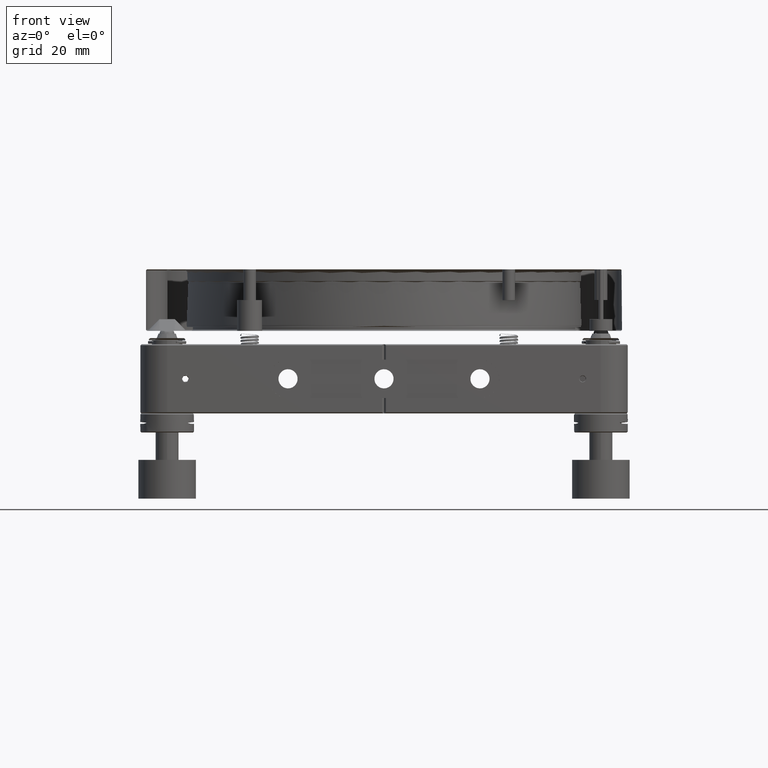
[diagram: clean part render]
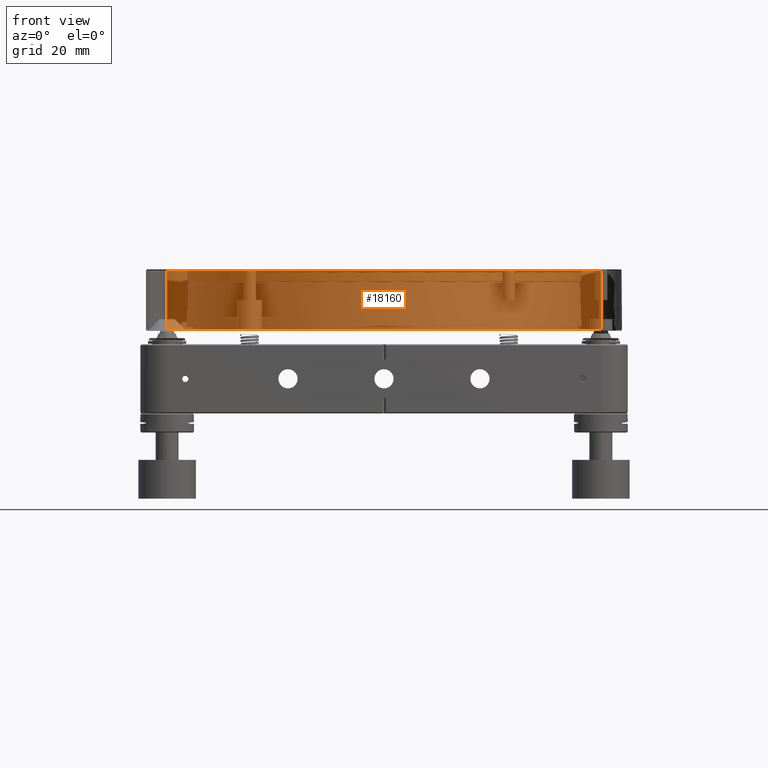
[diagram: same view with one face highlighted and labeled with its STEP entity id]
A machine part, front view. The second image highlights one B-rep face of the part: STEP entity #18160.
In plain terms, the highlighted planar face has unit normal (0, 1, 0).
Its self-contained STEP definition (entity closure, byte-faithful):
#158 = CARTESIAN_POINT ( 'NONE',  ( -56.50000000000000711, -62.00000000000000000, 28.25000000000001066 ) ) ;
#229 = DIRECTION ( 'NONE',  ( 0.000000000000000000, 0.000000000000000000, -1.000000000000000000 ) ) ;
#520 = CARTESIAN_POINT ( 'NONE',  ( -62.00000000000000711, -62.00000000000000000, 28.25000000000001066 ) ) ;
#989 = LINE ( 'NONE', #16692, #10370 ) ;
#1201 = FACE_OUTER_BOUND ( 'NONE', #22350, .T. ) ;
#1249 = VECTOR ( 'NONE', #20790, 1000.000000000000000 ) ;
#2372 = ORIENTED_EDGE ( 'NONE', *, *, #13465, .T. ) ;
#3616 = DIRECTION ( 'NONE',  ( 1.000000000000000000, -6.086749038515108114E-17, -0.000000000000000000 ) ) ;
#7670 = DIRECTION ( 'NONE',  ( -1.000000000000000000, 6.086749038515108114E-17, 0.000000000000000000 ) ) ;
#7782 = PLANE ( 'NONE',  #21367 ) ;
#8016 = ORIENTED_EDGE ( 'NONE', *, *, #10245, .F. ) ;
#8398 = LINE ( 'NONE', #10335, #16542 ) ;
#9942 = ORIENTED_EDGE ( 'NONE', *, *, #13902, .T. ) ;
#10053 = CARTESIAN_POINT ( 'NONE',  ( -62.00000000000000711, -62.00000000000000711, 12.75000000000000533 ) ) ;
#10245 = EDGE_CURVE ( 'NONE', #21758, #11734, #17355, .T. ) ;
#10283 = CARTESIAN_POINT ( 'NONE',  ( 56.49999999999999289, -61.99999999997453415, 28.25000000000353140 ) ) ;
#10335 = CARTESIAN_POINT ( 'NONE',  ( 56.49999999999998579, -62.00000000000000711, 28.49999999999999645 ) ) ;
#10370 = VECTOR ( 'NONE', #13399, 1000.000000000000000 ) ;
#10532 = LINE ( 'NONE', #520, #19534 ) ;
#11734 = VERTEX_POINT ( 'NONE', #13619 ) ;
#12378 = VERTEX_POINT ( 'NONE', #158 ) ;
#13399 = DIRECTION ( 'NONE',  ( 0.000000000000000000, -0.000000000000000000, 1.000000000000000000 ) ) ;
#13465 = EDGE_CURVE ( 'NONE', #19808, #11734, #8398, .T. ) ;
#13619 = CARTESIAN_POINT ( 'NONE',  ( 56.50000000000001421, -61.99999999997761790, 12.74999999994440891 ) ) ;
#13902 = EDGE_CURVE ( 'NONE', #21758, #12378, #989, .T. ) ;
#15077 = CARTESIAN_POINT ( 'NONE',  ( -62.00000000000000711, -62.00000000000000000, 28.49999999999999645 ) ) ;
#16542 = VECTOR ( 'NONE', #229, 1000.000000000000000 ) ;
#16588 = EDGE_CURVE ( 'NONE', #12378, #19808, #10532, .T. ) ;
#16692 = CARTESIAN_POINT ( 'NONE',  ( -56.50000000000000711, -62.00000000000000000, 28.49999999999999645 ) ) ;
#17355 = LINE ( 'NONE', #10053, #1249 ) ;
#18048 = DIRECTION ( 'NONE',  ( 6.086749038515108114E-17, 1.000000000000000000, 0.000000000000000000 ) ) ;
#18160 = ADVANCED_FACE ( 'NONE', ( #1201 ), #7782, .T. ) ;
#19534 = VECTOR ( 'NONE', #3616, 1000.000000000000000 ) ;
#19808 = VERTEX_POINT ( 'NONE', #10283 ) ;
#20264 = CARTESIAN_POINT ( 'NONE',  ( -56.50000000000000711, -62.00000000000307665, 12.74999999999568523 ) ) ;
#20455 = ORIENTED_EDGE ( 'NONE', *, *, #16588, .T. ) ;
#20790 = DIRECTION ( 'NONE',  ( 1.000000000000000000, -3.043374519257553441E-17, -3.043374519257553441E-17 ) ) ;
#21367 = AXIS2_PLACEMENT_3D ( 'NONE', #15077, #18048, #7670 ) ;
#21758 = VERTEX_POINT ( 'NONE', #20264 ) ;
#22350 = EDGE_LOOP ( 'NONE', ( #8016, #9942, #20455, #2372 ) ) ;